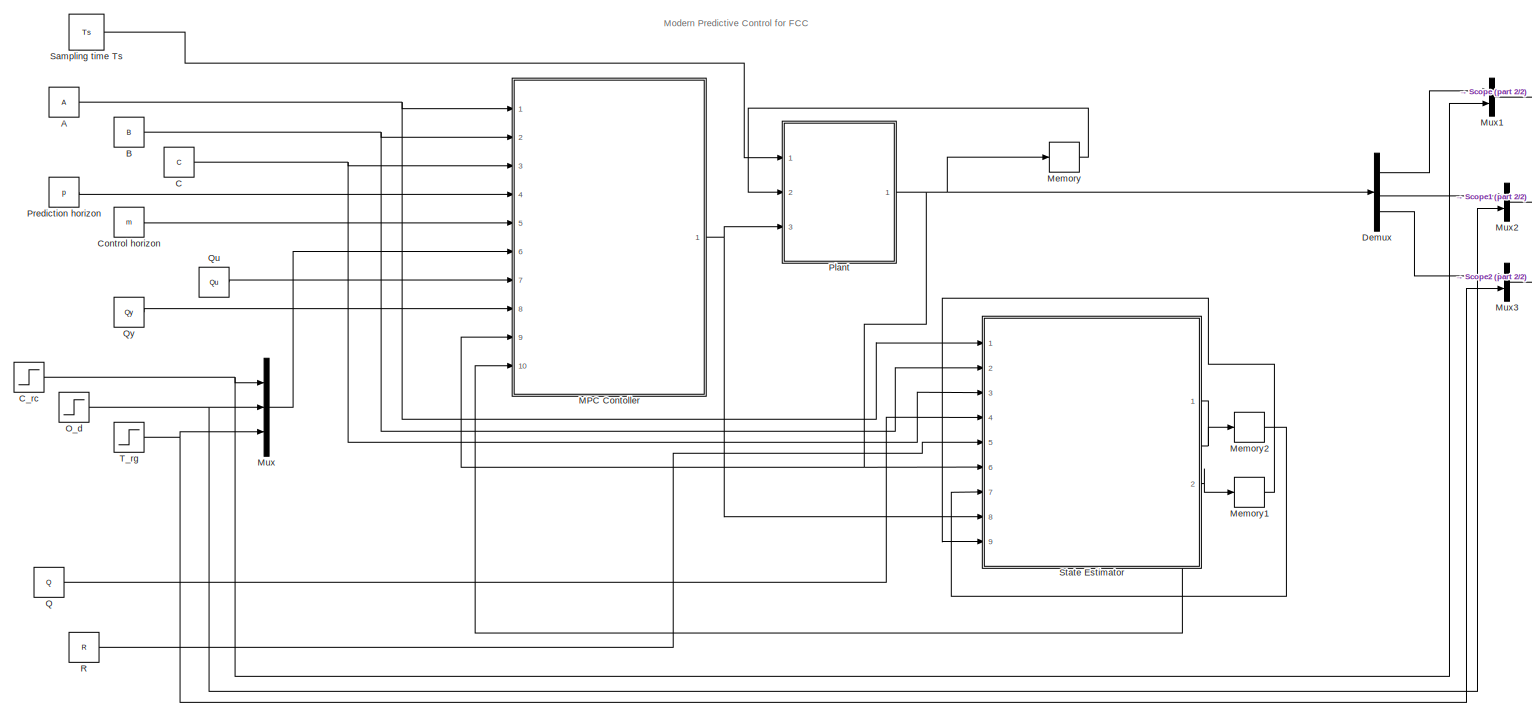
[diagram: root canvas - part 1/2, most of the canvas]
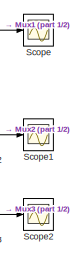
[diagram: root canvas - part 2/2, top right region]
MODEL slx_7ba7d65ca701
KIND model
CONFIG AbsTol = auto
CONFIG FixedStep = auto
CONFIG MaxStep = auto
CONFIG MinStep = auto
CONFIG RelTol = 1e-3
CONFIG SampleTimeConstraint = Unconstrained
CONFIG Solver = VariableStepAuto
CONFIG SolverMode = Auto
CONFIG SolverName = VariableStepAuto
CONFIG StartTime = 0.0
CONFIG StopTime = 20
BLOCK [Constant] A
  Value = A
  VectorParams1D = off
BLOCK [Constant] B
  Value = B
  VectorParams1D = off
BLOCK [Constant] C
  Value = C
  VectorParams1D = off
BLOCK [Step] C_rc
  After = Ref(1)
  SampleTime = Ts
  Time = 0
BLOCK [Constant] Control horizon
  Value = m
BLOCK [Demux] Demux
  DisplayOption = bar
  Outputs = 3
  Ports = [1, 3]
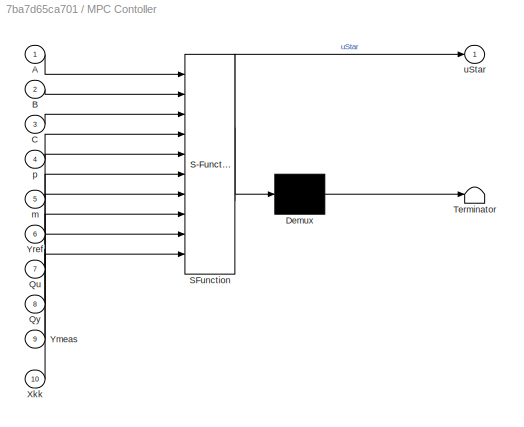
BLOCK [SubSystem] MPC Contoller
  ErrorFcn = Stateflow.Translate.translate
  PermitHierarchicalResolution = ExplicitOnly
  Ports = [10, 1]
  RequestExecContextInheritance = off
  SFBlockType = MATLAB Function
  TreatAsAtomicUnit = on
  Variant = off
BLOCK [Demux] MPC Contoller/ Demux 
  Outputs = 1
  Ports = [1, 1]
BLOCK [S-Function] MPC Contoller/ SFunction 
  EnableBusSupport = on
  FunctionName = sf_sfun
  PortCounts = [10 2]
  Ports = [10, 2]
  SFunctionDeploymentMode = off
  Tag = Stateflow S-Function MPConFCC 2
BLOCK [Terminator] MPC Contoller/ Terminator 
BLOCK [Inport] MPC Contoller/A
  IconDisplay = Port number
BLOCK [Inport] MPC Contoller/B
  IconDisplay = Port number
  Port = 2
BLOCK [Inport] MPC Contoller/C
  IconDisplay = Port number
  Port = 3
BLOCK [Inport] MPC Contoller/Qu
  IconDisplay = Port number
  Port = 7
BLOCK [Inport] MPC Contoller/Qy
  IconDisplay = Port number
  Port = 8
BLOCK [Inport] MPC Contoller/Xkk
  IconDisplay = Port number
  Port = 10
BLOCK [Inport] MPC Contoller/Ymeas
  IconDisplay = Port number
  Port = 9
BLOCK [Inport] MPC Contoller/Yref
  IconDisplay = Port number
  Port = 6
BLOCK [Inport] MPC Contoller/m
  IconDisplay = Port number
  Port = 5
BLOCK [Inport] MPC Contoller/p
  IconDisplay = Port number
  Port = 4
BLOCK [Outport] MPC Contoller/uStar
  IconDisplay = Port number
BLOCK [Memory] Memory
  InheritSampleTime = on
  X0 = C*X00
BLOCK [Memory] Memory1
  X0 = P00
BLOCK [Memory] Memory2
  X0 = X00
BLOCK [Mux] Mux
  DisplayOption = bar
  Inputs = 3
  Ports = [3, 1]
BLOCK [Mux] Mux1
  DisplayOption = bar
  Inputs = 2
  Ports = [2, 1]
BLOCK [Mux] Mux2
  DisplayOption = bar
  Inputs = 2
  Ports = [2, 1]
BLOCK [Mux] Mux3
  DisplayOption = bar
  Inputs = 2
  Ports = [2, 1]
BLOCK [Step] O_d
  After = Ref(2)
  SampleTime = Ts
  Time = 0
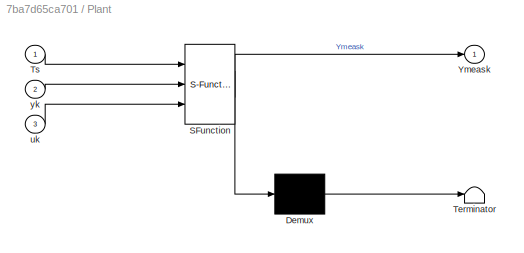
BLOCK [SubSystem] Plant
  ErrorFcn = Stateflow.Translate.translate
  PermitHierarchicalResolution = ExplicitOnly
  Ports = [3, 1]
  RequestExecContextInheritance = off
  SFBlockType = MATLAB Function
  TreatAsAtomicUnit = on
  Variant = off
BLOCK [Demux] Plant/ Demux 
  Outputs = 1
  Ports = [1, 1]
BLOCK [S-Function] Plant/ SFunction 
  EnableBusSupport = on
  FunctionName = sf_sfun
  PortCounts = [3 2]
  Ports = [3, 2]
  SFunctionDeploymentMode = off
  Tag = Stateflow S-Function MPConFCC 1
BLOCK [Terminator] Plant/ Terminator 
BLOCK [Inport] Plant/Ts
  IconDisplay = Port number
BLOCK [Outport] Plant/Ymeask
  IconDisplay = Port number
BLOCK [Inport] Plant/uk
  IconDisplay = Port number
  Port = 3
BLOCK [Inport] Plant/yk
  IconDisplay = Port number
  Port = 2
BLOCK [Constant] Prediction horizon
  Value = p
BLOCK [Constant] Q
  Value = Q
  VectorParams1D = off
BLOCK [Constant] Qu
  Value = Qu
  VectorParams1D = off
BLOCK [Constant] Qy
  Value = Qy
  VectorParams1D = off
BLOCK [Constant] R
  Value = R
  VectorParams1D = off
BLOCK [Constant] Sampling time Ts
  Value = Ts
BLOCK [Scope] Scope
  Ports = [1]
  ScopeSpecificationString = Simulink.scopes.TimeScopeBlockCfg('CurrentConfiguration', extmgr.ConfigurationSet(extmgr.Configuration('Core','General UI',true),extmgr.Configuration('Core','Source UI',true),extmgr.Configuration('Sources','WiredSimulink',true),extmgr.Configuration('Visuals','Time Domain',true,'SerializedDisplays',{struct('MinYLimReal','-10.00000','MaxYLimReal','10.00000','YLabelReal','','MinYLimMag','0.00000','Ma...<+1393ch>
BLOCK [Scope] Scope1
  Ports = [1]
  ScopeSpecificationString = Simulink.scopes.TimeScopeBlockCfg('CurrentConfiguration', extmgr.ConfigurationSet(extmgr.Configuration('Core','General UI',true),extmgr.Configuration('Core','Source UI',true),extmgr.Configuration('Sources','WiredSimulink',true,'DataLoggingVariableName','ScopeData1'),extmgr.Configuration('Visuals','Time Domain',true),extmgr.Configuration('Tools','Plot Navigation',true),extmgr.Configuration('Tools',...<+58ch>
BLOCK [Scope] Scope2
  Ports = [1]
  ScopeSpecificationString = Simulink.scopes.TimeScopeBlockCfg('CurrentConfiguration', extmgr.ConfigurationSet(extmgr.Configuration('Core','General UI',true),extmgr.Configuration('Core','Source UI',true),extmgr.Configuration('Sources','WiredSimulink',true,'DataLoggingVariableName','ScopeData2'),extmgr.Configuration('Visuals','Time Domain',true),extmgr.Configuration('Tools','Plot Navigation',true),extmgr.Configuration('Tools',...<+58ch>
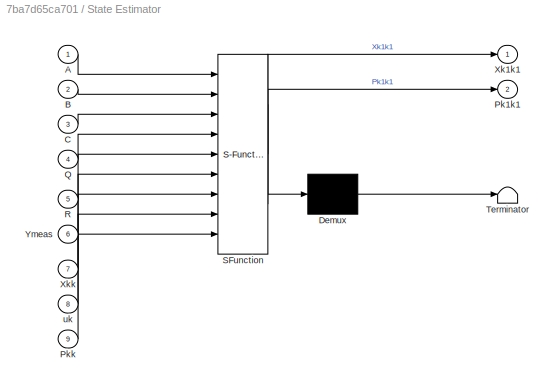
BLOCK [SubSystem] State Estimator
  ErrorFcn = Stateflow.Translate.translate
  PermitHierarchicalResolution = ExplicitOnly
  Ports = [9, 2]
  RequestExecContextInheritance = off
  SFBlockType = MATLAB Function
  TreatAsAtomicUnit = on
  Variant = off
BLOCK [Demux] State Estimator/ Demux 
  Outputs = 1
  Ports = [1, 1]
BLOCK [S-Function] State Estimator/ SFunction 
  EnableBusSupport = on
  FunctionName = sf_sfun
  PortCounts = [9 3]
  Ports = [9, 3]
  SFunctionDeploymentMode = off
  Tag = Stateflow S-Function MPConFCC 3
BLOCK [Terminator] State Estimator/ Terminator 
BLOCK [Inport] State Estimator/A
  IconDisplay = Port number
BLOCK [Inport] State Estimator/B
  IconDisplay = Port number
  Port = 2
BLOCK [Inport] State Estimator/C
  IconDisplay = Port number
  Port = 3
BLOCK [Outport] State Estimator/Pk1k1
  IconDisplay = Port number
  Port = 2
BLOCK [Inport] State Estimator/Pkk
  IconDisplay = Port number
  Port = 9
BLOCK [Inport] State Estimator/Q
  IconDisplay = Port number
  Port = 4
BLOCK [Inport] State Estimator/R
  IconDisplay = Port number
  Port = 5
BLOCK [Outport] State Estimator/Xk1k1
  IconDisplay = Port number
BLOCK [Inport] State Estimator/Xkk
  IconDisplay = Port number
  Port = 7
BLOCK [Inport] State Estimator/Ymeas
  IconDisplay = Port number
  Port = 6
BLOCK [Inport] State Estimator/uk
  IconDisplay = Port number
  Port = 8
BLOCK [Step] T_rg
  After = Ref(3)
  SampleTime = Ts
ANNOTATION (root): Modern Predictive Control for FCC
NET A:1 -> MPC Contoller:1, State Estimator:1
NET B:1 -> MPC Contoller:2, State Estimator:2
NET C:1 -> MPC Contoller:3, State Estimator:3
NET C_rc:1 -> Mux1:2, Mux:1
LINE Control horizon:1 -> MPC Contoller:5
LINE Demux:1 -> Mux1:1
LINE Demux:2 -> Mux2:1
LINE Demux:3 -> Mux3:1
NET MPC Contoller:1 -> Plant:3, State Estimator:8
LINE Memory1:1 -> State Estimator:9
LINE Memory2:1 -> State Estimator:7
LINE Memory:1 -> Plant:2
LINE Mux1:1 -> Scope:1
LINE Mux2:1 -> Scope1:1
LINE Mux3:1 -> Scope2:1
LINE Mux:1 -> MPC Contoller:6
NET O_d:1 -> Mux2:2, Mux:2
NET Plant:1 -> Demux:1, MPC Contoller:9, Memory:1, State Estimator:6
LINE Prediction horizon:1 -> MPC Contoller:4
LINE Q:1 -> State Estimator:4
LINE Qu:1 -> MPC Contoller:7
LINE Qy:1 -> MPC Contoller:8
LINE R:1 -> State Estimator:5
LINE Sampling time Ts:1 -> Plant:1
NET State Estimator:1 -> MPC Contoller:10, Memory2:1
LINE State Estimator:2 -> Memory1:1
NET T_rg:1 -> Mux3:2, Mux:3
note: NET lines group one-source signal fan-out (src -> all destinations, sorted); 1:1 wires keep LINE
CHART Plant states=1 transitions=1
  STATE_LABEL 'eML_blk_kernel()'
  STATE_LABEL "SCRIPT:\nfunction Ymeask = plant(Ts,yk,uk)\n\n    tspan  = [0 Ts];              % [startTime endTime]\n    fun=@(t,y)yrates(t,y,uk);\n    [tout, yout]    = ode45(fun, tspan, yk, 0.00000001);\n    Ymeask = (yout(end,:))';   % predicted estimated\nend"
CHART MPC Contoller states=1 transitions=1
  STATE_LABEL 'eML_blk_kernel()'
  STATE_LABEL 'SCRIPT:\nfunction uStar = inputPlanSim(A,B,C, p,m,Yref,Qu,Qy,Ymeas, Xkk)\n\n%{\nA,B,C  - State space model matrices\nXkk    - Current estimated state\nYref   - Reference measurement for the prediction horizon size Nxp \nN      - number of measurements\nL      - number of inputs\np      - Prediction horizon\nm      - control horizon\nQu     - input weights\nQy     - measurement weights\n%}\n\n\n\n\n\n\n%%\n[n, L] = siz...<+365ch>'
CHART State Estimator states=1 transitions=1
  STATE_LABEL 'eML_blk_kernel()'
  STATE_LABEL "SCRIPT:\nfunction [Xk1k1,Pk1k1] = KalmanFilter(A,B,C,Q,R,Ymeas,Xkk,uk,Pkk)\n\ns     = size(Pkk);\n    % Prediction\n    Xk1k=A*Xkk+B*uk;\n    Pk1k=A*Pkk*A'+Q;\n     % Correction\n    K=Pk1k*C'*inv(C*Pk1k*C'+R);        % Optimal Kalman gain\n    Xk1k1=Xk1k+K*(Ymeas-C*Xk1k);\n    \n    Pk1k1=(eye(s)-K*C)*Pk1k;\n\n\nend"
